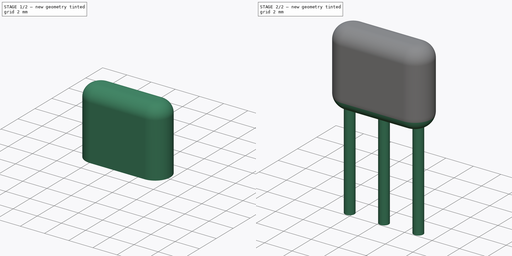
[diagram: build sequence overview — one tinted view per stage of 2, left to right]
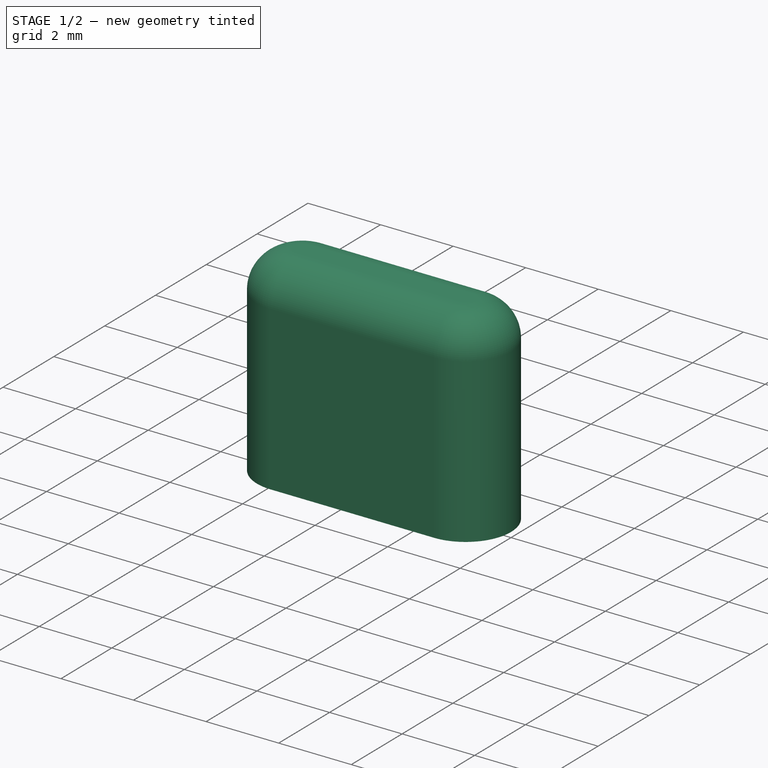
[diagram: stage 1 of 2 — iso view after this stage's code; geometry added in this stage tinted green]
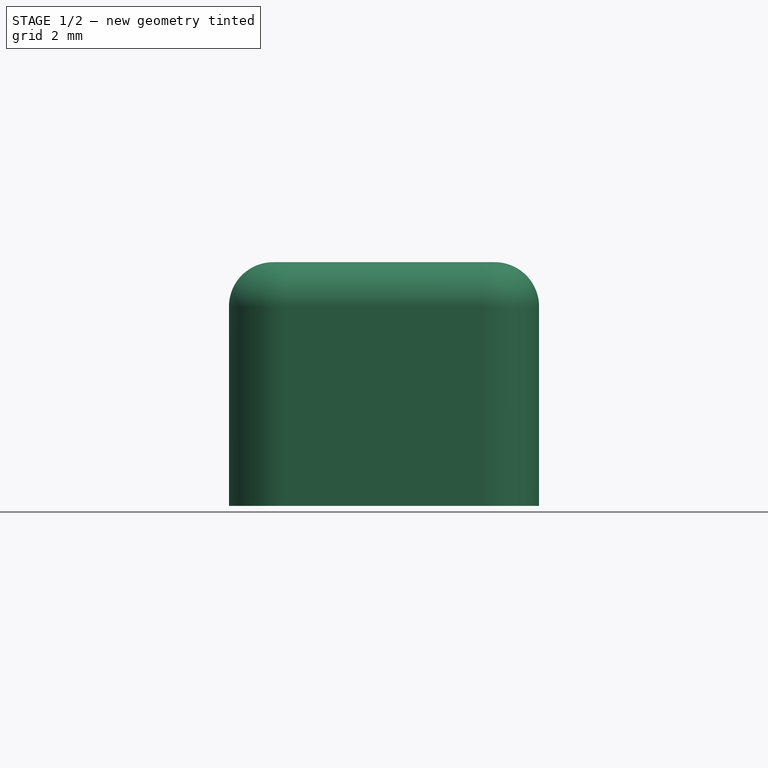
[diagram: stage 1 of 2 — front view after this stage's code; geometry added in this stage tinted green]
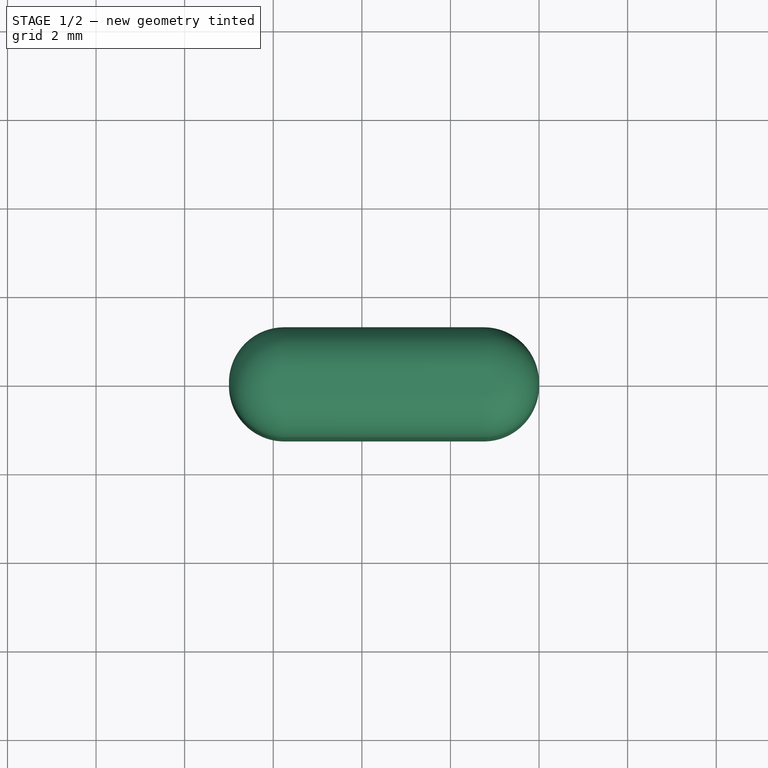
[diagram: stage 1 of 2 — top view after this stage's code; geometry added in this stage tinted green]
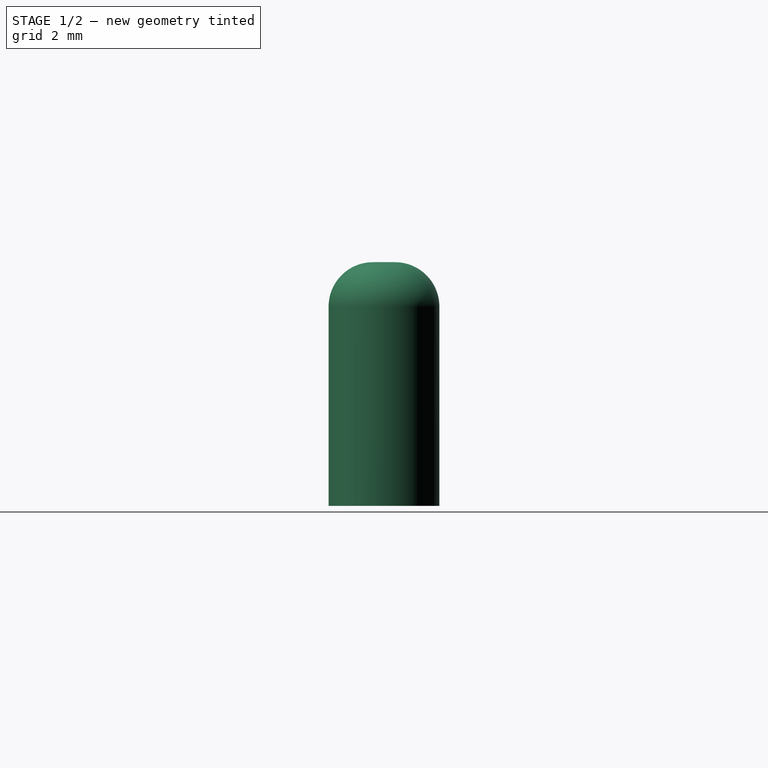
[diagram: stage 1 of 2 — right view after this stage's code; geometry added in this stage tinted green]
FCSTD DOCUMENT  (FreeCAD 0.16R6703 (Git))
Label: Resonator-3pin_w7.0mm_h2.5mm
License: All rights reserved
LicenseURL: http://en.wikipedia.org/wiki/All_rights_reserved
objects: Sketcher::SketchObject×2, PartDesign::Pad×2, PartDesign::Fillet×2, Spreadsheet::Sheet×1
note: 8 computed .brp shape members not serialized (recipe doc carries the construction recipe); baked Part::Feature solids carry a one-line shape summary decoded from their .brp

FEATURE [Sketcher::SketchObject] Sketch003
  Placement = pos=(0,0,3) rot=(0,0,1;0rad)
  expr: Constraints[16] = (Spreadsheet.iW - Spreadsheet.rm) / 2
  expr: Constraints[15] = Spreadsheet.iH
  expr: Constraints[14] = Spreadsheet.iW
  sketch-geometry (6):
    g0: LineSegment StartX=0.25 StartY=1.25 StartZ=0 EndX=4.75 EndY=1.25 EndZ=0
    g1: LineSegment StartX=4.75 StartY=-1.25 StartZ=0 EndX=0.25 EndY=-1.25 EndZ=0
    g2: ArcOfCircle CenterX=4.75 CenterY=0 CenterZ=0 NormalX=0 NormalY=0 NormalZ=1 Radius=1.25 StartAngle=0 EndAngle=1.5708
    g3: ArcOfCircle CenterX=4.75 CenterY=0 CenterZ=0 NormalX=0 NormalY=0 NormalZ=1 Radius=1.25 StartAngle=4.71239 EndAngle=6.28319
    g4: ArcOfCircle CenterX=0.25 CenterY=0 CenterZ=0 NormalX=0 NormalY=0 NormalZ=1 Radius=1.25 StartAngle=1.5708 EndAngle=3.14159
    g5: ArcOfCircle CenterX=0.25 CenterY=0 CenterZ=0 NormalX=0 NormalY=0 NormalZ=1 Radius=1.25 StartAngle=3.14159 EndAngle=4.71239
  constraints (17):
    c: Horizontal(g0)
    c: Horizontal(g1)
    c: Tangent(g0,g2) = 1.5708
    c: Tangent(g1,g3) = 1.5708
    c: Tangent(g0,g4) = 1.5708
    c: Tangent(g1,g5) = 1.5708
    c: Coincident(g2,g3)
    c: Coincident(g2,g3)
    c: PointOnObject(g2,g-1)
    c: Coincident(g4,g5)
    c: PointOnObject(g4,g-1)
    c: Coincident(g4,g5)
    c: PointOnObject(g4,g-1)
    c: PointOnObject(g2,g-1)
    c: DistanceX(g4,g2) = 7
    c: DistanceY(g1,g0) = 2.5
    c: DistanceX(g4,g-1) = 1
FEATURE [PartDesign::Pad] Pad002
  Length = 5.5
  Length2 = 100
  Placement = pos=(0,0,3) rot=(0,0,1;0rad)
  Sketch = -> Sketch003
  Type = 0
  expr: Length = Spreadsheet.height3d
FEATURE [PartDesign::Fillet] Fillet
  Base = -> Pad002 [Edge4,Edge18,Edge16,Edge13,Edge10,Edge7]
  Placement = pos=(0,0,3) rot=(0,0,1;0rad)
  Radius = 1
  expr: Radius = Spreadsheet.HH * 0.4
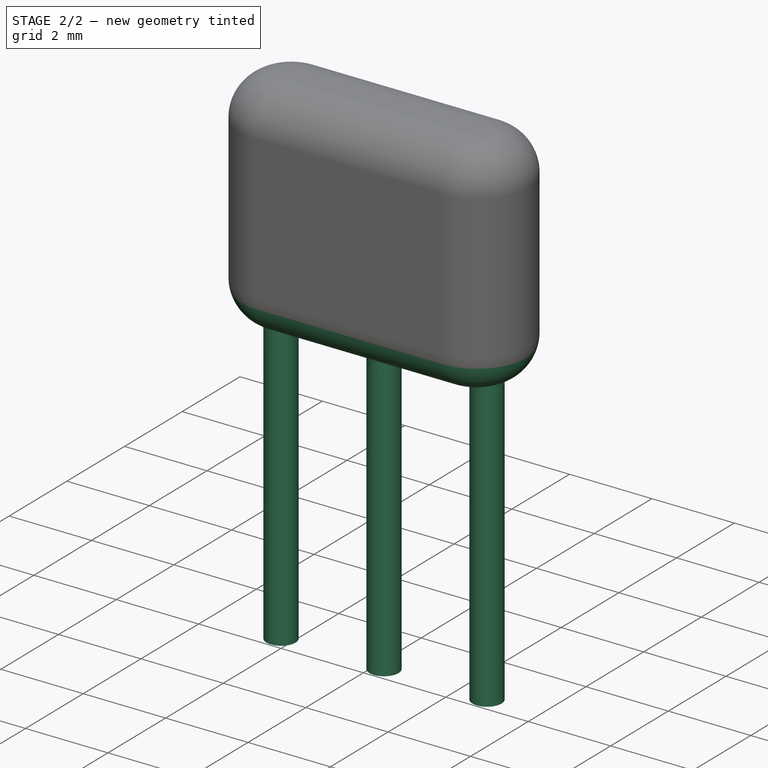
[diagram: stage 2 of 2 — iso view after this stage's code; geometry added in this stage tinted green]
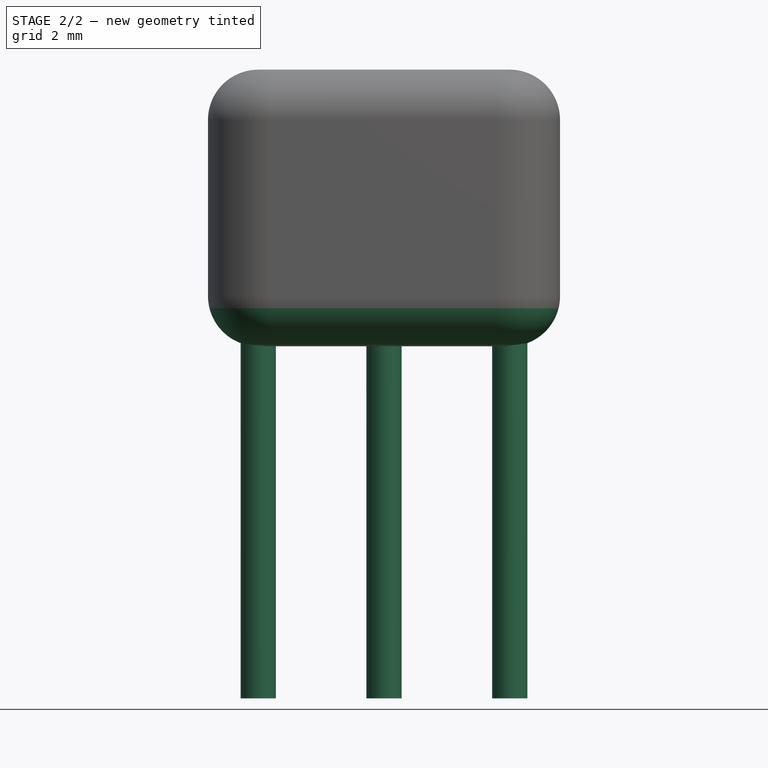
[diagram: stage 2 of 2 — front view after this stage's code; geometry added in this stage tinted green]
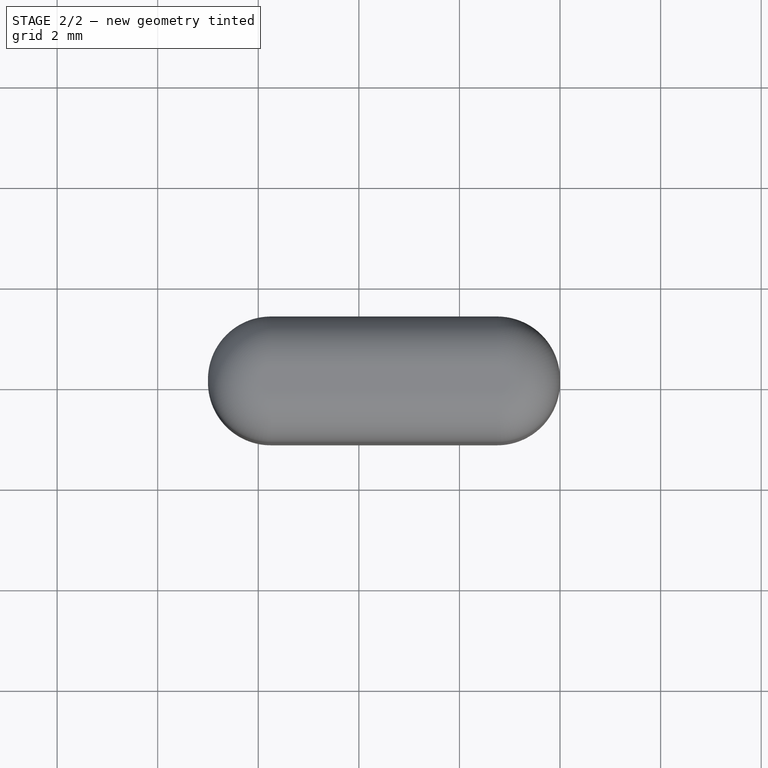
[diagram: stage 2 of 2 — top view after this stage's code; geometry added in this stage tinted green]
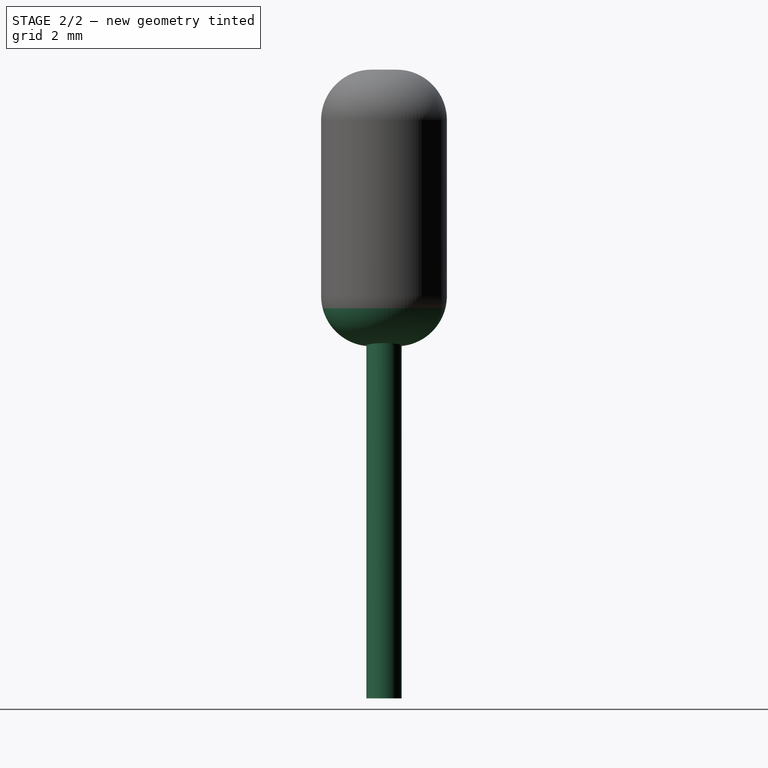
[diagram: stage 2 of 2 — right view after this stage's code; geometry added in this stage tinted green]
FEATURE [Spreadsheet::Sheet] Spreadsheet
  cells = A1=W; B1(WW)=7; C1(iW)=7; A2=H; B2(HH)=2.5; C2(iH)=2.5; A3=height3d; B3(height3d)=5.5; A4=RM; B4(rm)=5; A5=d_wire; B5(d_wire)=0.7
FEATURE [Sketcher::SketchObject] Sketch
  Placement = pos=(0,0,4) rot=(0,0,1;0rad)
  expr: Constraints[4] = Spreadsheet.d_wire / 2
  expr: Constraints[6] = Spreadsheet.rm / 2
  expr: Constraints[2] = Spreadsheet.d_wire / 2
  expr: Constraints[3] = Spreadsheet.rm
  expr: Constraints[1] = Spreadsheet.d_wire / 2
  sketch-geometry (3):
    g0: Circle CenterX=0 CenterY=0 CenterZ=0 NormalX=0 NormalY=0 NormalZ=1 Radius=0.35
    g1: Circle CenterX=5 CenterY=0 CenterZ=0 NormalX=0 NormalY=0 NormalZ=1 Radius=0.35
    g2: Circle CenterX=2.5 CenterY=0 CenterZ=0 NormalX=0 NormalY=0 NormalZ=1 Radius=0.35
  constraints (7):
    c: PointOnObject(g1,g-1)
    c: Radius(g1) = 0.35
    c: Radius(g0) = 0.35
    c: DistanceX(g-1,g1) = 5
    c: Radius(g2) = 0.35
    c: PointOnObject(g2,g-1)
    c: DistanceX(g-1,g2) = 2.5
FEATURE [PartDesign::Pad] Pad
  Length = 8
  Length2 = 100
  Placement = pos=(0,0,4) rot=(0,0,1;0rad)
  Reversed = true
  Sketch = -> Sketch
  Type = 0
FEATURE [PartDesign::Fillet] Fillet001
  Base = -> Fillet [Edge12,Edge11,Edge3,Edge13,Edge14,Edge6]
  Placement = pos=(0,0,3) rot=(0,0,1;0rad)
  Radius = 1
  expr: Radius = Spreadsheet.HH * 0.4
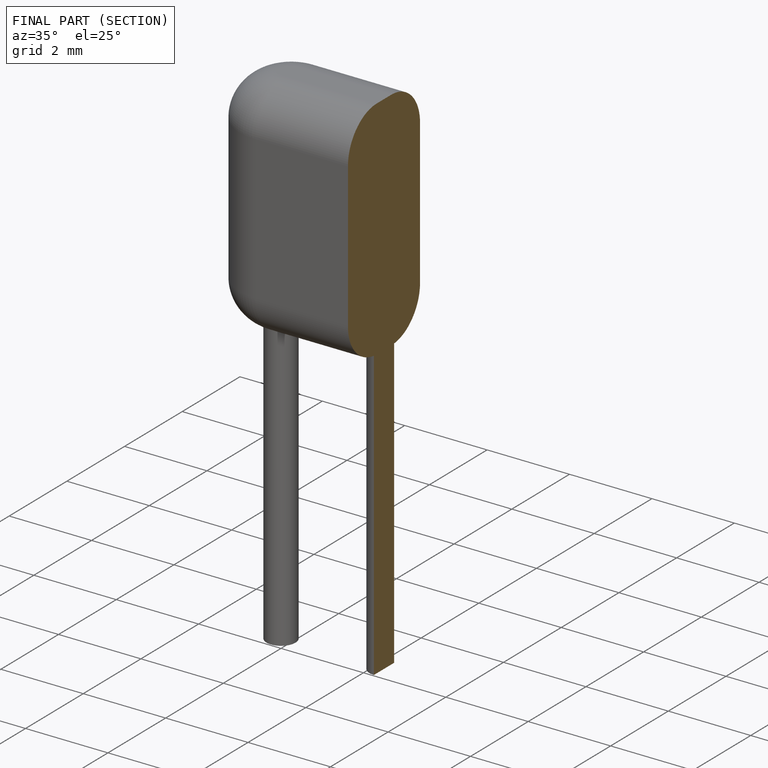
[diagram: finished part — half-section view (interior)]
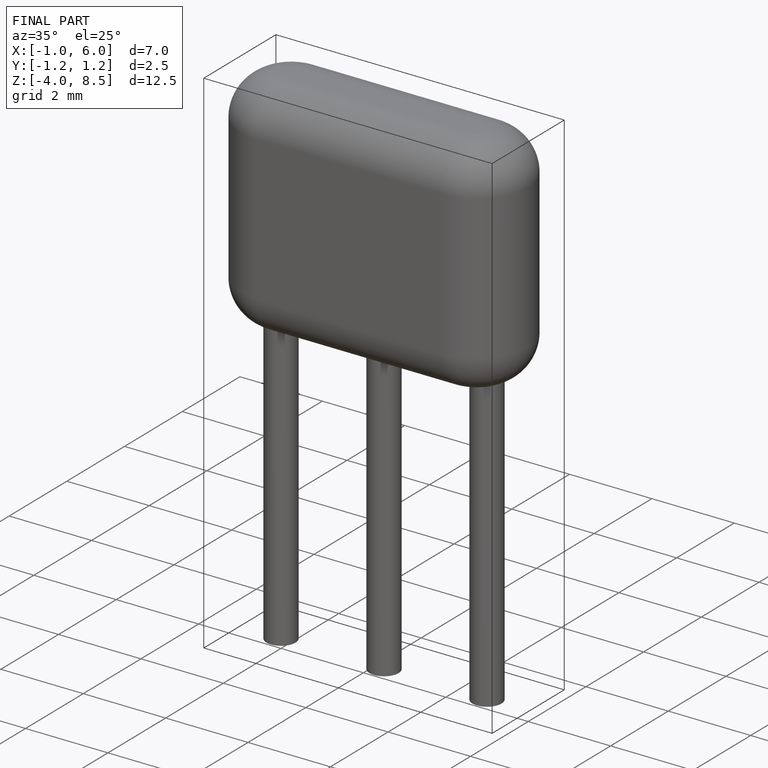
[diagram: finished part — iso view with bounding-box wireframe]
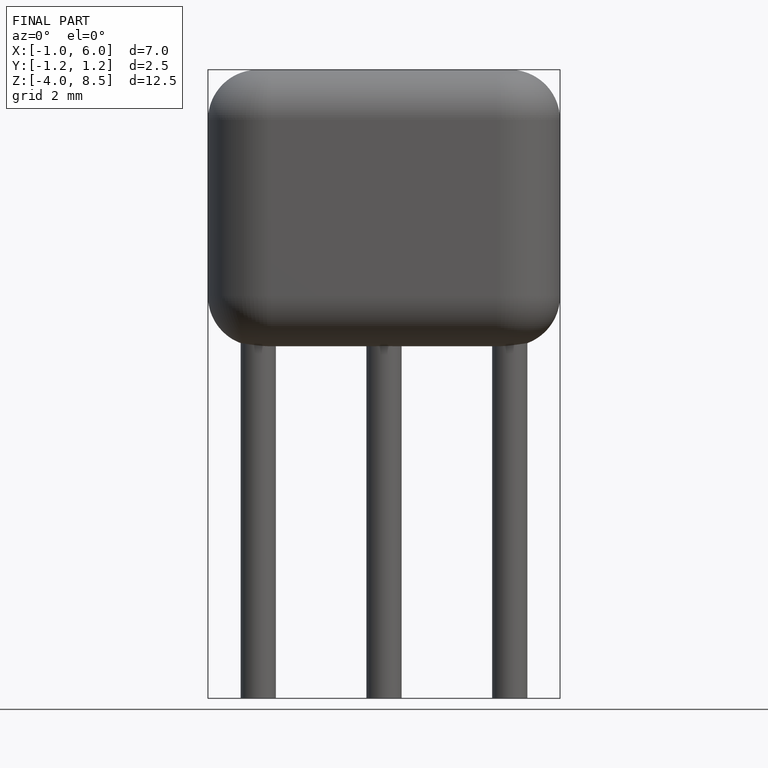
[diagram: finished part — front view with bounding-box wireframe]
